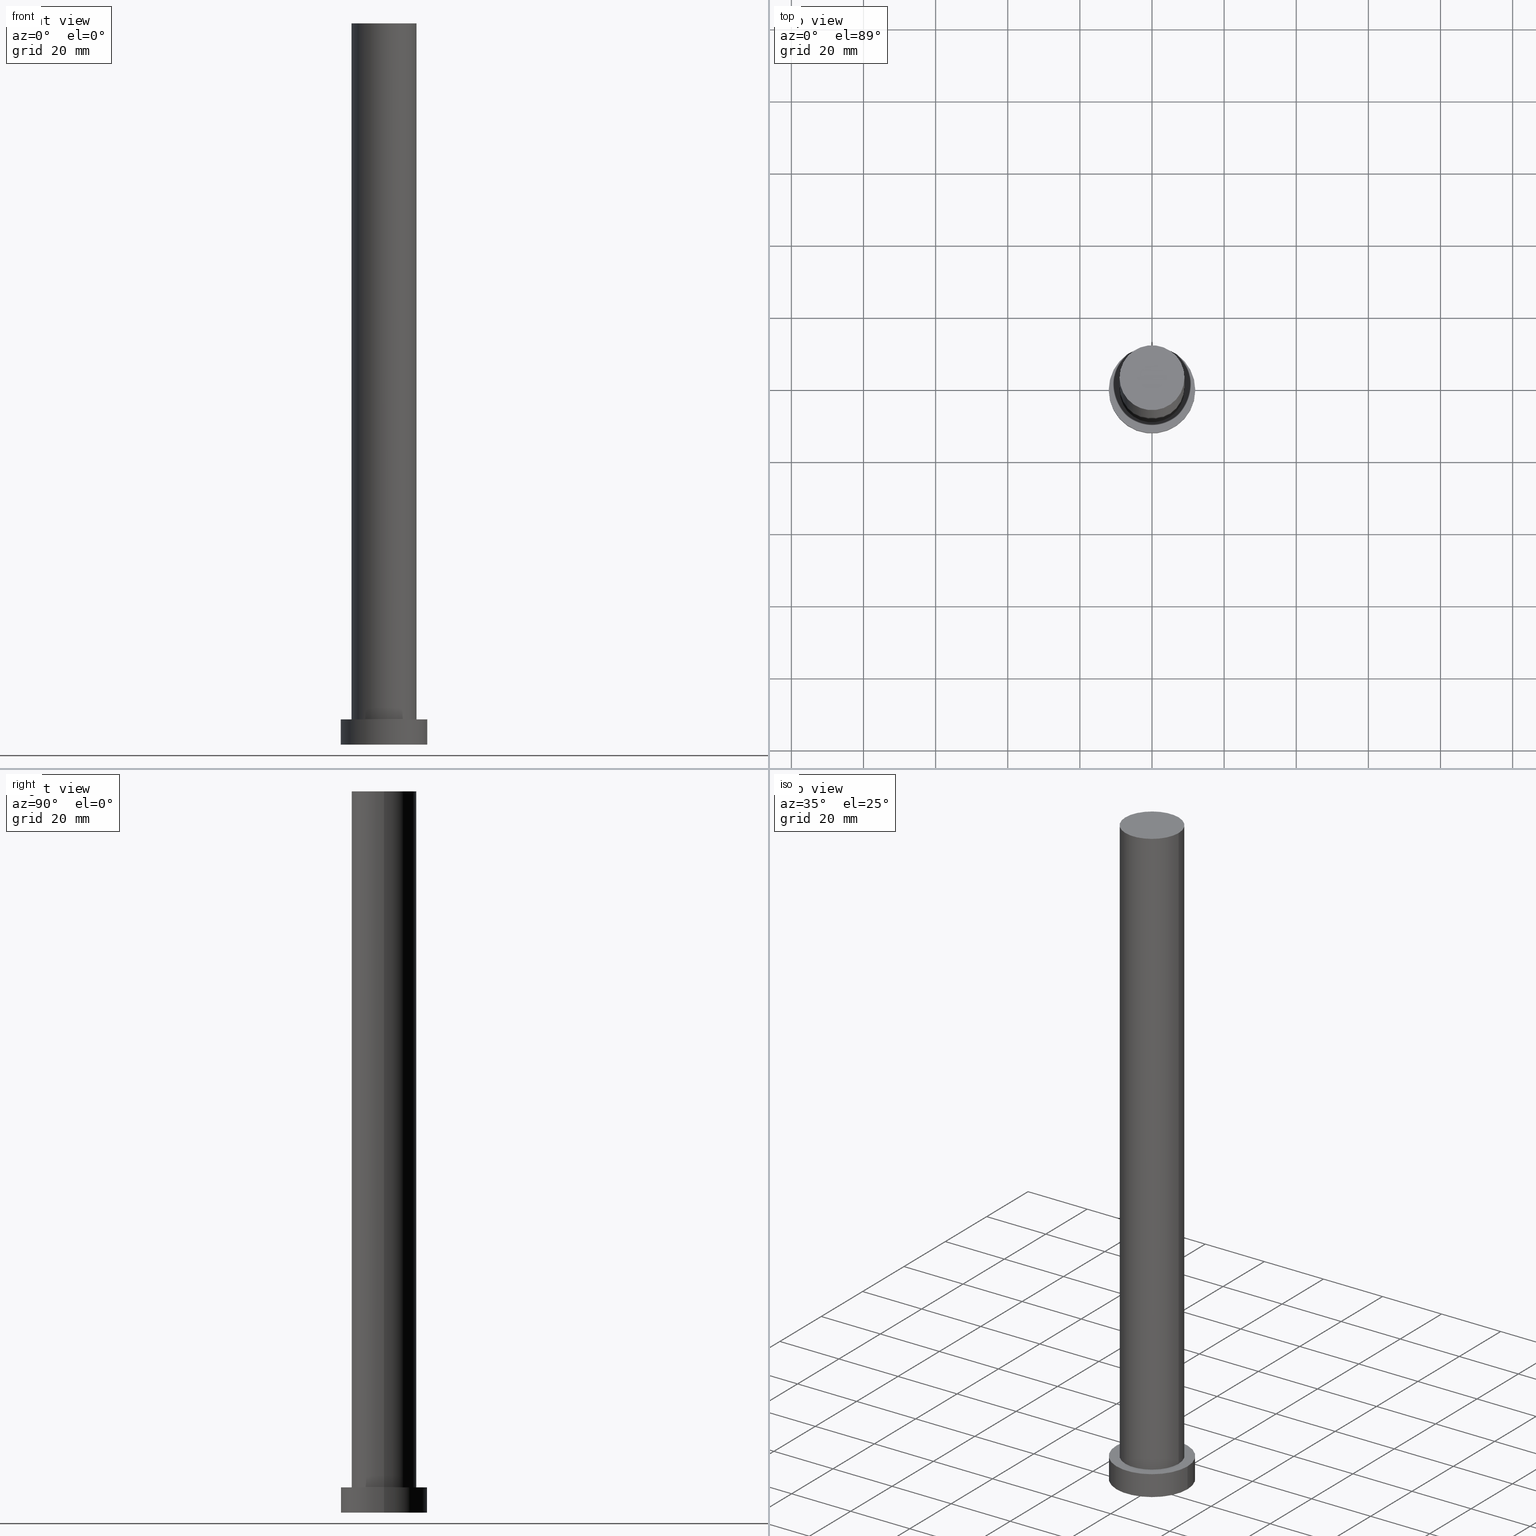
[diagram: canonical four-view strip — front | top / right | iso, engineering-drawing reading convention]
A machine part, canonical four-view strip (front | top / right | iso — engineering-drawing reading convention). The complete STEP part file that produces these views, byte-faithful:
ISO-10303-21;
HEADER;
FILE_DESCRIPTION (( 'STEP AP203' ),
    '1' );
FILE_NAME ('92cb.STEP',
    '2023-02-13T07:36:00',
    ( '' ),
    ( '' ),
    'SwSTEP 2.0',
    'SolidWorks 2019',
    '' );
FILE_SCHEMA (( 'CONFIG_CONTROL_DESIGN' ));
ENDSEC;

DATA;
#1 = ADVANCED_FACE ( 'NONE', ( #201 ), #30, .T. ) ;
#2 = DIRECTION ( 'NONE',  ( -0.000000000000000000, -0.000000000000000000, -1.000000000000000000 ) ) ;
#3 = CARTESIAN_POINT ( 'NONE',  ( 0.000000000000000000, 0.000000000000000000, 0.000000000000000000 ) ) ;
#4 = LOCAL_TIME ( 8, 36, 0.000000000000000000, #133 ) ;
#5 = ADVANCED_BREP_SHAPE_REPRESENTATION ( '92cb', ( #232, #96 ), #171 ) ;
#6 = ORIENTED_EDGE ( 'NONE', *, *, #150, .F. ) ;
#7 =( NAMED_UNIT ( * ) SI_UNIT ( $, .STERADIAN. ) SOLID_ANGLE_UNIT ( ) );
#8 = CC_DESIGN_PERSON_AND_ORGANIZATION_ASSIGNMENT ( #92, #186, ( #227 ) ) ;
#9 = ORIENTED_EDGE ( 'NONE', *, *, #41, .T. ) ;
#10 = DIRECTION ( 'NONE',  ( -0.000000000000000000, -0.000000000000000000, -1.000000000000000000 ) ) ;
#11 = VERTEX_POINT ( 'NONE', #198 ) ;
#12 = CARTESIAN_POINT ( 'NONE',  ( 0.000000000000000000, 0.000000000000000000, 7.000000000000000000 ) ) ;
#13 = DIRECTION ( 'NONE',  ( 1.000000000000000000, 0.000000000000000000, 0.000000000000000000 ) ) ;
#14 = CIRCLE ( 'NONE', #61, 9.000000000000000000 ) ;
#15 = PERSON_AND_ORGANIZATION_ROLE ( 'creator' ) ;
#16 = COORDINATED_UNIVERSAL_TIME_OFFSET ( 1, 0, .AHEAD. ) ;
#17 = DATE_AND_TIME ( #73, #157 ) ;
#18 = APPROVAL_ROLE ( '' ) ;
#19 = LOCAL_TIME ( 8, 36, 0.000000000000000000, #207 ) ;
#20 = EDGE_CURVE ( 'NONE', #220, #211, #70, .T. ) ;
#21 = EDGE_CURVE ( 'NONE', #48, #211, #119, .T. ) ;
#22 = EDGE_LOOP ( 'NONE', ( #53, #25 ) ) ;
#23 = APPLICATION_CONTEXT ( 'configuration controlled 3d designs of mechanical parts and assemblies' ) ;
#24 = ORIENTED_EDGE ( 'NONE', *, *, #47, .F. ) ;
#25 = ORIENTED_EDGE ( 'NONE', *, *, #163, .F. ) ;
#26 = CC_DESIGN_APPROVAL ( #149, ( #37 ) ) ;
#27 = DIRECTION ( 'NONE',  ( -1.000000000000000000, 0.000000000000000000, 0.000000000000000000 ) ) ;
#28 = CARTESIAN_POINT ( 'NONE',  ( 9.000000000000000000, 1.102182119232617714E-15, 200.0000000000000000 ) ) ;
#29 = CARTESIAN_POINT ( 'NONE',  ( 0.000000000000000000, 0.000000000000000000, 200.0000000000000000 ) ) ;
#30 = CYLINDRICAL_SURFACE ( 'NONE', #174, 12.00000000000000178 ) ;
#31 = CARTESIAN_POINT ( 'NONE',  ( -9.000000000000000000, 0.000000000000000000, 200.0000000000000000 ) ) ;
#32 = CLOSED_SHELL ( 'NONE', ( #199, #154, #1, #231, #195, #239, #213 ) ) ;
#33 =( LENGTH_UNIT ( ) NAMED_UNIT ( * ) SI_UNIT ( .MILLI., .METRE. ) );
#34 = DIRECTION ( 'NONE',  ( 0.000000000000000000, 0.000000000000000000, 1.000000000000000000 ) ) ;
#35 = CALENDAR_DATE ( 2023, 13, 2 ) ;
#36 = CIRCLE ( 'NONE', #230, 12.00000000000000178 ) ;
#37 = SECURITY_CLASSIFICATION ( '', '', #135 ) ;
#38 = PERSON_AND_ORGANIZATION_ROLE ( 'creator' ) ;
#39 = PERSON_AND_ORGANIZATION_ROLE ( 'classification_officer' ) ;
#40 = DIRECTION ( 'NONE',  ( 1.000000000000000000, 0.000000000000000000, 0.000000000000000000 ) ) ;
#41 = EDGE_CURVE ( 'NONE', #48, #233, #60, .T. ) ;
#42 = AXIS2_PLACEMENT_3D ( 'NONE', #161, #63, #160 ) ;
#43 = CARTESIAN_POINT ( 'NONE',  ( 0.000000000000000000, 0.000000000000000000, 200.0000000000000000 ) ) ;
#44 = DIRECTION ( 'NONE',  ( 0.000000000000000000, 0.000000000000000000, 1.000000000000000000 ) ) ;
#45 = AXIS2_PLACEMENT_3D ( 'NONE', #101, #146, #107 ) ;
#46 = CARTESIAN_POINT ( 'NONE',  ( 0.000000000000000000, 0.000000000000000000, 200.0000000000000000 ) ) ;
#47 = EDGE_CURVE ( 'NONE', #224, #11, #178, .T. ) ;
#48 = VERTEX_POINT ( 'NONE', #218 ) ;
#49 = CARTESIAN_POINT ( 'NONE',  ( -12.00000000000000178, 0.000000000000000000, 7.000000000000000000 ) ) ;
#50 = ORIENTED_EDGE ( 'NONE', *, *, #132, .F. ) ;
#51 = FACE_OUTER_BOUND ( 'NONE', #22, .T. ) ;
#52 = DIRECTION ( 'NONE',  ( -0.000000000000000000, -0.000000000000000000, -1.000000000000000000 ) ) ;
#53 = ORIENTED_EDGE ( 'NONE', *, *, #20, .F. ) ;
#54 = CALENDAR_DATE ( 2023, 13, 2 ) ;
#55 = DATE_AND_TIME ( #147, #19 ) ;
#56 = APPROVAL_PERSON_ORGANIZATION ( #228, #192, #169 ) ;
#57 = PERSON_AND_ORGANIZATION ( #152, #153 ) ;
#58 = CALENDAR_DATE ( 2023, 13, 2 ) ;
#59 = APPROVAL_ROLE ( '' ) ;
#60 = CIRCLE ( 'NONE', #189, 12.00000000000000178 ) ;
#61 = AXIS2_PLACEMENT_3D ( 'NONE', #12, #91, #247 ) ;
#62 = EDGE_LOOP ( 'NONE', ( #175, #50, #158, #131 ) ) ;
#63 = DIRECTION ( 'NONE',  ( 0.000000000000000000, 0.000000000000000000, 1.000000000000000000 ) ) ;
#64 = ORIENTED_EDGE ( 'NONE', *, *, #208, .T. ) ;
#65 = AXIS2_PLACEMENT_3D ( 'NONE', #3, #138, #100 ) ;
#66 = VERTEX_POINT ( 'NONE', #79 ) ;
#67 = PLANE ( 'NONE',  #45 ) ;
#68 = FACE_OUTER_BOUND ( 'NONE', #238, .T. ) ;
#69 = FACE_OUTER_BOUND ( 'NONE', #126, .T. ) ;
#70 = CIRCLE ( 'NONE', #65, 12.00000000000000178 ) ;
#71 = CC_DESIGN_PERSON_AND_ORGANIZATION_ASSIGNMENT ( #168, #39, ( #37 ) ) ;
#72 = DATE_AND_TIME ( #58, #4 ) ;
#73 = CALENDAR_DATE ( 2023, 13, 2 ) ;
#74 = CIRCLE ( 'NONE', #216, 9.000000000000000000 ) ;
#75 = PERSON_AND_ORGANIZATION ( #152, #153 ) ;
#76 = CIRCLE ( 'NONE', #172, 9.000000000000000000 ) ;
#77 = APPROVAL_PERSON_ORGANIZATION ( #252, #123, #18 ) ;
#78 = CC_DESIGN_PERSON_AND_ORGANIZATION_ASSIGNMENT ( #185, #15, ( #227 ) ) ;
#79 = CARTESIAN_POINT ( 'NONE',  ( -9.000000000000000000, 0.000000000000000000, 7.000000000000000000 ) ) ;
#80 = UNCERTAINTY_MEASURE_WITH_UNIT (LENGTH_MEASURE( 1.000000000000000082E-05 ), #33, 'distance_accuracy_value', 'NONE');
#81 = CARTESIAN_POINT ( 'NONE',  ( 12.00000000000000178, 1.469576158976824144E-15, 7.000000000000000000 ) ) ;
#82 = CARTESIAN_POINT ( 'NONE',  ( -9.000000000000000000, 0.000000000000000000, 200.0000000000000000 ) ) ;
#83 = ORIENTED_EDGE ( 'NONE', *, *, #113, .T. ) ;
#84 = AXIS2_PLACEMENT_3D ( 'NONE', #162, #52, #164 ) ;
#85 = CARTESIAN_POINT ( 'NONE',  ( 0.000000000000000000, 0.000000000000000000, 200.0000000000000000 ) ) ;
#86 = DIRECTION ( 'NONE',  ( -1.000000000000000000, 0.000000000000000000, 0.000000000000000000 ) ) ;
#87 = DIRECTION ( 'NONE',  ( 1.000000000000000000, 0.000000000000000000, 0.000000000000000000 ) ) ;
#88 = DIRECTION ( 'NONE',  ( 1.000000000000000000, 0.000000000000000000, -0.000000000000000000 ) ) ;
#89 = CIRCLE ( 'NONE', #42, 12.00000000000000178 ) ;
#90 = ORIENTED_EDGE ( 'NONE', *, *, #208, .F. ) ;
#91 = DIRECTION ( 'NONE',  ( 0.000000000000000000, 0.000000000000000000, 1.000000000000000000 ) ) ;
#92 = PERSON_AND_ORGANIZATION ( #152, #153 ) ;
#93 = SHAPE_DEFINITION_REPRESENTATION ( #212, #5 ) ;
#94 = APPROVAL_DATE_TIME ( #116, #192 ) ;
#95 = DATE_TIME_ROLE ( 'classification_date' ) ;
#96 = AXIS2_PLACEMENT_3D ( 'NONE', #115, #190, #40 ) ;
#97 = DIRECTION ( 'NONE',  ( -0.000000000000000000, -0.000000000000000000, -1.000000000000000000 ) ) ;
#98 = ORIENTED_EDGE ( 'NONE', *, *, #177, .T. ) ;
#99 = DESIGN_CONTEXT ( 'detailed design', #23, 'design' ) ;
#100 = DIRECTION ( 'NONE',  ( 1.000000000000000000, 0.000000000000000000, 0.000000000000000000 ) ) ;
#101 = CARTESIAN_POINT ( 'NONE',  ( 0.000000000000000000, 0.000000000000000000, 0.000000000000000000 ) ) ;
#102 = ORIENTED_EDGE ( 'NONE', *, *, #188, .F. ) ;
#103 = LINE ( 'NONE', #49, #151 ) ;
#104 = PRODUCT_DEFINITION ( 'NEZN�M�', '', #227, #99 ) ;
#105 = ORIENTED_EDGE ( 'NONE', *, *, #41, .F. ) ;
#106 = CARTESIAN_POINT ( 'NONE',  ( 0.000000000000000000, 0.000000000000000000, 7.000000000000000000 ) ) ;
#107 = DIRECTION ( 'NONE',  ( 1.000000000000000000, 0.000000000000000000, -0.000000000000000000 ) ) ;
#108 = CYLINDRICAL_SURFACE ( 'NONE', #84, 12.00000000000000178 ) ;
#109 = APPROVAL_DATE_TIME ( #72, #149 ) ;
#110 = AXIS2_PLACEMENT_3D ( 'NONE', #167, #144, #27 ) ;
#111 = COORDINATED_UNIVERSAL_TIME_OFFSET ( 1, 0, .AHEAD. ) ;
#112 = PRODUCT ( '92cb', '92cb', '', ( #234 ) ) ;
#113 = EDGE_CURVE ( 'NONE', #193, #66, #121, .T. ) ;
#114 = DATE_TIME_ROLE ( 'creation_date' ) ;
#115 = CARTESIAN_POINT ( 'NONE',  ( 0.000000000000000000, 0.000000000000000000, 0.000000000000000000 ) ) ;
#116 = DATE_AND_TIME ( #35, #240 ) ;
#117 = APPROVAL_PERSON_ORGANIZATION ( #170, #149, #59 ) ;
#118 = EDGE_LOOP ( 'NONE', ( #124, #243 ) ) ;
#119 = LINE ( 'NONE', #81, #166 ) ;
#120 = DIRECTION ( 'NONE',  ( 1.000000000000000000, 0.000000000000000000, 0.000000000000000000 ) ) ;
#121 = LINE ( 'NONE', #82, #194 ) ;
#122 = CARTESIAN_POINT ( 'NONE',  ( 0.000000000000000000, 0.000000000000000000, 7.000000000000000000 ) ) ;
#123 = APPROVAL ( #210, 'NEUR�EN�' ) ;
#124 = ORIENTED_EDGE ( 'NONE', *, *, #150, .T. ) ;
#125 = DIRECTION ( 'NONE',  ( 0.000000000000000000, 0.000000000000000000, 1.000000000000000000 ) ) ;
#126 = EDGE_LOOP ( 'NONE', ( #105, #209, #176, #102 ) ) ;
#127 = DIRECTION ( 'NONE',  ( 0.000000000000000000, 0.000000000000000000, 1.000000000000000000 ) ) ;
#128 = CC_DESIGN_APPROVAL ( #192, ( #104 ) ) ;
#129 = FACE_OUTER_BOUND ( 'NONE', #143, .T. ) ;
#130 = DATE_AND_TIME ( #54, #221 ) ;
#131 = ORIENTED_EDGE ( 'NONE', *, *, #20, .T. ) ;
#132 = EDGE_CURVE ( 'NONE', #233, #48, #89, .T. ) ;
#133 = COORDINATED_UNIVERSAL_TIME_OFFSET ( 1, 0, .AHEAD. ) ;
#134 = COORDINATED_UNIVERSAL_TIME_OFFSET ( 1, 0, .AHEAD. ) ;
#135 = SECURITY_CLASSIFICATION_LEVEL ( 'unclassified' ) ;
#136 = CC_DESIGN_PERSON_AND_ORGANIZATION_ASSIGNMENT ( #57, #235, ( #112 ) ) ;
#137 = CARTESIAN_POINT ( 'NONE',  ( 0.000000000000000000, 0.000000000000000000, 7.000000000000000000 ) ) ;
#138 = DIRECTION ( 'NONE',  ( 0.000000000000000000, 0.000000000000000000, 1.000000000000000000 ) ) ;
#139 = CYLINDRICAL_SURFACE ( 'NONE', #148, 9.000000000000000000 ) ;
#140 = CIRCLE ( 'NONE', #236, 9.000000000000000000 ) ;
#141 = CC_DESIGN_SECURITY_CLASSIFICATION ( #37, ( #227 ) ) ;
#142 = ORIENTED_EDGE ( 'NONE', *, *, #251, .F. ) ;
#143 = EDGE_LOOP ( 'NONE', ( #244, #9 ) ) ;
#144 = DIRECTION ( 'NONE',  ( -0.000000000000000000, -0.000000000000000000, -1.000000000000000000 ) ) ;
#145 = DIRECTION ( 'NONE',  ( -0.000000000000000000, -0.000000000000000000, -1.000000000000000000 ) ) ;
#146 = DIRECTION ( 'NONE',  ( 0.000000000000000000, 0.000000000000000000, 1.000000000000000000 ) ) ;
#147 = CALENDAR_DATE ( 2023, 13, 2 ) ;
#148 = AXIS2_PLACEMENT_3D ( 'NONE', #85, #145, #219 ) ;
#149 = APPROVAL ( #253, 'NEUR�EN�' ) ;
#150 = EDGE_CURVE ( 'NONE', #193, #224, #140, .T. ) ;
#151 = VECTOR ( 'NONE', #10, 1000.000000000000000 ) ;
#152 = PERSON ( 'NEUR�EN�', 'NEUR�EN�', 'NEUR�EN�', ('NEUR�EN�'), ('NEUR�EN�'), ('NEUR�EN�') ) ;
#153 = ORGANIZATION ( 'NEUR�EN�', 'NEUR�EN�', '' ) ;
#154 = ADVANCED_FACE ( 'NONE', ( #69 ), #108, .T. ) ;
#155 = ORIENTED_EDGE ( 'NONE', *, *, #113, .F. ) ;
#156 = DIRECTION ( 'NONE',  ( -0.000000000000000000, -0.000000000000000000, -1.000000000000000000 ) ) ;
#157 = LOCAL_TIME ( 8, 36, 0.000000000000000000, #16 ) ;
#158 = ORIENTED_EDGE ( 'NONE', *, *, #188, .T. ) ;
#159 = PRODUCT_RELATED_PRODUCT_CATEGORY ( 'detail', '', ( #112 ) ) ;
#160 = DIRECTION ( 'NONE',  ( 1.000000000000000000, 0.000000000000000000, 0.000000000000000000 ) ) ;
#161 = CARTESIAN_POINT ( 'NONE',  ( 0.000000000000000000, 0.000000000000000000, 7.000000000000000000 ) ) ;
#162 = CARTESIAN_POINT ( 'NONE',  ( 0.000000000000000000, 0.000000000000000000, 7.000000000000000000 ) ) ;
#163 = EDGE_CURVE ( 'NONE', #211, #220, #36, .T. ) ;
#164 = DIRECTION ( 'NONE',  ( -1.000000000000000000, 0.000000000000000000, 0.000000000000000000 ) ) ;
#165 = FACE_BOUND ( 'NONE', #191, .T. ) ;
#166 = VECTOR ( 'NONE', #97, 1000.000000000000000 ) ;
#167 = CARTESIAN_POINT ( 'NONE',  ( 0.000000000000000000, 0.000000000000000000, 200.0000000000000000 ) ) ;
#168 = PERSON_AND_ORGANIZATION ( #152, #153 ) ;
#169 = APPROVAL_ROLE ( '' ) ;
#170 = PERSON_AND_ORGANIZATION ( #152, #153 ) ;
#171 =( GEOMETRIC_REPRESENTATION_CONTEXT ( 3 ) GLOBAL_UNCERTAINTY_ASSIGNED_CONTEXT ( ( #80 ) ) GLOBAL_UNIT_ASSIGNED_CONTEXT ( ( #33, #249, #7 ) ) REPRESENTATION_CONTEXT ( 'NONE', 'WORKASPACE' ) );
#172 = AXIS2_PLACEMENT_3D ( 'NONE', #106, #125, #87 ) ;
#173 = DIRECTION ( 'NONE',  ( 0.000000000000000000, 0.000000000000000000, 1.000000000000000000 ) ) ;
#174 = AXIS2_PLACEMENT_3D ( 'NONE', #242, #181, #86 ) ;
#175 = ORIENTED_EDGE ( 'NONE', *, *, #21, .F. ) ;
#176 = ORIENTED_EDGE ( 'NONE', *, *, #163, .T. ) ;
#177 = EDGE_CURVE ( 'NONE', #66, #11, #14, .T. ) ;
#178 = LINE ( 'NONE', #28, #180 ) ;
#179 = CYLINDRICAL_SURFACE ( 'NONE', #110, 9.000000000000000000 ) ;
#180 = VECTOR ( 'NONE', #2, 1000.000000000000000 ) ;
#181 = DIRECTION ( 'NONE',  ( -0.000000000000000000, -0.000000000000000000, -1.000000000000000000 ) ) ;
#182 = PLANE ( 'NONE',  #203 ) ;
#183 = DIRECTION ( 'NONE',  ( 1.000000000000000000, 0.000000000000000000, -0.000000000000000000 ) ) ;
#184 = FACE_OUTER_BOUND ( 'NONE', #217, .T. ) ;
#185 = PERSON_AND_ORGANIZATION ( #152, #153 ) ;
#186 = PERSON_AND_ORGANIZATION_ROLE ( 'design_supplier' ) ;
#187 = APPLICATION_PROTOCOL_DEFINITION ( 'international standard', 'config_control_design', 1994, #223 ) ;
#188 = EDGE_CURVE ( 'NONE', #233, #220, #103, .T. ) ;
#189 = AXIS2_PLACEMENT_3D ( 'NONE', #137, #173, #246 ) ;
#190 = DIRECTION ( 'NONE',  ( 0.000000000000000000, 0.000000000000000000, 1.000000000000000000 ) ) ;
#191 = EDGE_LOOP ( 'NONE', ( #241, #90 ) ) ;
#192 = APPROVAL ( #214, 'NEUR�EN�' ) ;
#193 = VERTEX_POINT ( 'NONE', #31 ) ;
#194 = VECTOR ( 'NONE', #156, 1000.000000000000000 ) ;
#195 = ADVANCED_FACE ( 'NONE', ( #51 ), #67, .F. ) ;
#196 = ORIENTED_EDGE ( 'NONE', *, *, #47, .T. ) ;
#197 = PLANE ( 'NONE',  #245 ) ;
#198 = CARTESIAN_POINT ( 'NONE',  ( 9.000000000000000000, 1.102182119232617714E-15, 7.000000000000000000 ) ) ;
#199 = ADVANCED_FACE ( 'NONE', ( #184 ), #179, .T. ) ;
#200 = CARTESIAN_POINT ( 'NONE',  ( 12.00000000000000178, 1.469576158976824144E-15, 0.000000000000000000 ) ) ;
#201 = FACE_OUTER_BOUND ( 'NONE', #62, .T. ) ;
#202 = FACE_OUTER_BOUND ( 'NONE', #118, .T. ) ;
#203 = AXIS2_PLACEMENT_3D ( 'NONE', #29, #127, #88 ) ;
#204 = DIRECTION ( 'NONE',  ( 0.000000000000000000, 0.000000000000000000, 1.000000000000000000 ) ) ;
#205 = DIRECTION ( 'NONE',  ( 0.000000000000000000, 0.000000000000000000, 1.000000000000000000 ) ) ;
#206 = CC_DESIGN_PERSON_AND_ORGANIZATION_ASSIGNMENT ( #75, #38, ( #104 ) ) ;
#207 = COORDINATED_UNIVERSAL_TIME_OFFSET ( 1, 0, .AHEAD. ) ;
#208 = EDGE_CURVE ( 'NONE', #11, #66, #76, .T. ) ;
#209 = ORIENTED_EDGE ( 'NONE', *, *, #21, .T. ) ;
#210 = APPROVAL_STATUS ( 'not_yet_approved' ) ;
#211 = VERTEX_POINT ( 'NONE', #200 ) ;
#212 = PRODUCT_DEFINITION_SHAPE ( 'NONE', 'NONE',  #104 ) ;
#213 = ADVANCED_FACE ( 'NONE', ( #202 ), #182, .T. ) ;
#214 = APPROVAL_STATUS ( 'not_yet_approved' ) ;
#215 = APPLICATION_PROTOCOL_DEFINITION ( 'international standard', 'config_control_design', 1994, #23 ) ;
#216 = AXIS2_PLACEMENT_3D ( 'NONE', #46, #204, #120 ) ;
#217 = EDGE_LOOP ( 'NONE', ( #142, #196, #64, #155 ) ) ;
#218 = CARTESIAN_POINT ( 'NONE',  ( 12.00000000000000178, 1.469576158976824144E-15, 7.000000000000000000 ) ) ;
#219 = DIRECTION ( 'NONE',  ( -1.000000000000000000, 0.000000000000000000, 0.000000000000000000 ) ) ;
#220 = VERTEX_POINT ( 'NONE', #226 ) ;
#221 = LOCAL_TIME ( 8, 36, 0.000000000000000000, #111 ) ;
#222 = CARTESIAN_POINT ( 'NONE',  ( 0.000000000000000000, 0.000000000000000000, 0.000000000000000000 ) ) ;
#223 = APPLICATION_CONTEXT ( 'configuration controlled 3d designs of mechanical parts and assemblies' ) ;
#224 = VERTEX_POINT ( 'NONE', #250 ) ;
#225 = DIRECTION ( 'NONE',  ( 1.000000000000000000, 0.000000000000000000, 0.000000000000000000 ) ) ;
#226 = CARTESIAN_POINT ( 'NONE',  ( -12.00000000000000178, 0.000000000000000000, 0.000000000000000000 ) ) ;
#227 = PRODUCT_DEFINITION_FORMATION_WITH_SPECIFIED_SOURCE ( 'LIBOVOLN�', '', #112, .NOT_KNOWN. ) ;
#228 = PERSON_AND_ORGANIZATION ( #152, #153 ) ;
#229 = APPROVAL_DATE_TIME ( #130, #123 ) ;
#230 = AXIS2_PLACEMENT_3D ( 'NONE', #222, #34, #13 ) ;
#231 = ADVANCED_FACE ( 'NONE', ( #165, #129 ), #197, .T. ) ;
#232 = MANIFOLD_SOLID_BREP ( 'P�idat vysunut�m3', #32 ) ;
#233 = VERTEX_POINT ( 'NONE', #248 ) ;
#234 = MECHANICAL_CONTEXT ( 'NONE', #223, 'mechanical' ) ;
#235 = PERSON_AND_ORGANIZATION_ROLE ( 'design_owner' ) ;
#236 = AXIS2_PLACEMENT_3D ( 'NONE', #43, #44, #225 ) ;
#237 = CC_DESIGN_DATE_AND_TIME_ASSIGNMENT ( #17, #95, ( #37 ) ) ;
#238 = EDGE_LOOP ( 'NONE', ( #24, #6, #83, #98 ) ) ;
#239 = ADVANCED_FACE ( 'NONE', ( #68 ), #139, .T. ) ;
#240 = LOCAL_TIME ( 8, 36, 0.000000000000000000, #134 ) ;
#241 = ORIENTED_EDGE ( 'NONE', *, *, #177, .F. ) ;
#242 = CARTESIAN_POINT ( 'NONE',  ( 0.000000000000000000, 0.000000000000000000, 7.000000000000000000 ) ) ;
#243 = ORIENTED_EDGE ( 'NONE', *, *, #251, .T. ) ;
#244 = ORIENTED_EDGE ( 'NONE', *, *, #132, .T. ) ;
#245 = AXIS2_PLACEMENT_3D ( 'NONE', #122, #205, #183 ) ;
#246 = DIRECTION ( 'NONE',  ( 1.000000000000000000, 0.000000000000000000, 0.000000000000000000 ) ) ;
#247 = DIRECTION ( 'NONE',  ( 1.000000000000000000, 0.000000000000000000, 0.000000000000000000 ) ) ;
#248 = CARTESIAN_POINT ( 'NONE',  ( -12.00000000000000178, 0.000000000000000000, 7.000000000000000000 ) ) ;
#249 =( NAMED_UNIT ( * ) PLANE_ANGLE_UNIT ( ) SI_UNIT ( $, .RADIAN. ) );
#250 = CARTESIAN_POINT ( 'NONE',  ( 9.000000000000000000, 1.102182119232617714E-15, 200.0000000000000000 ) ) ;
#251 = EDGE_CURVE ( 'NONE', #224, #193, #74, .T. ) ;
#252 = PERSON_AND_ORGANIZATION ( #152, #153 ) ;
#253 = APPROVAL_STATUS ( 'not_yet_approved' ) ;
#254 = CC_DESIGN_DATE_AND_TIME_ASSIGNMENT ( #55, #114, ( #104 ) ) ;
#255 = CC_DESIGN_APPROVAL ( #123, ( #227 ) ) ;
ENDSEC;
END-ISO-10303-21;
